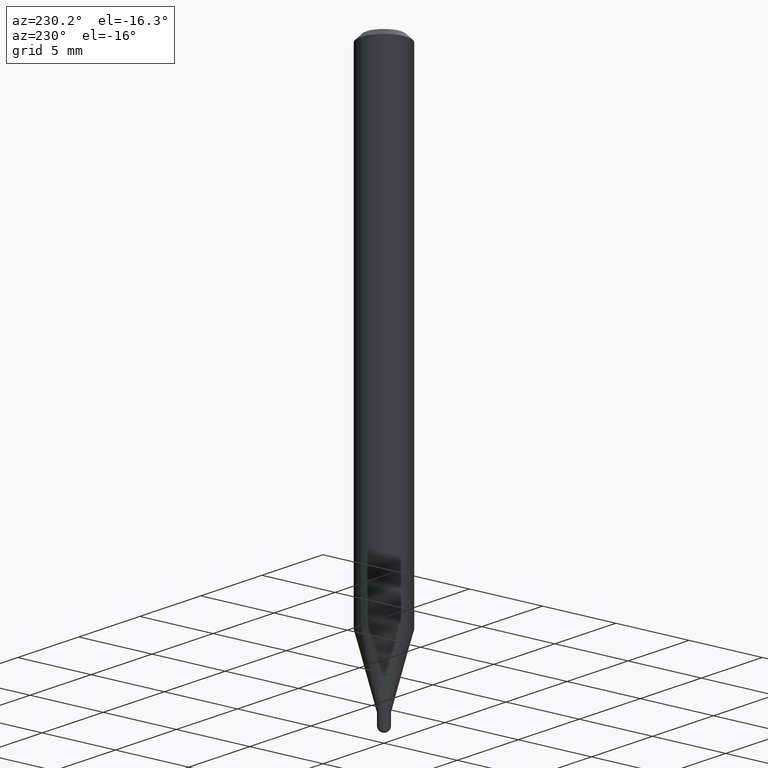
[diagram: clean part render]
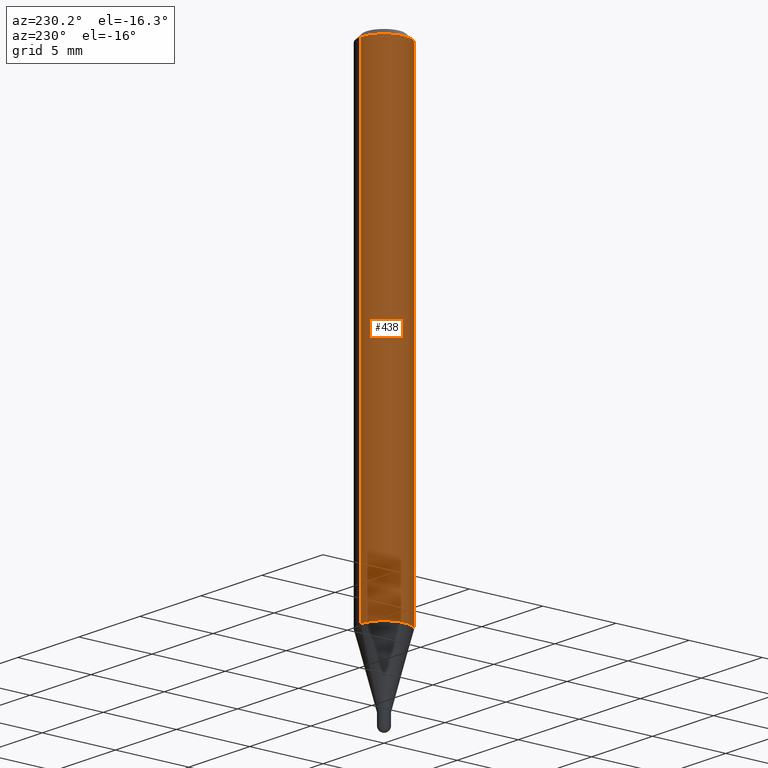
[diagram: same view with one face highlighted and labeled with its STEP entity id]
A machine part, auxiliary view. The second image highlights one B-rep face of the part: STEP entity #438.
In plain terms, the highlighted cylindrical surface (edge-blend (fillet) strip) has radius 1.5875 mm, axis along (-0, 0, 1).
Its self-contained STEP definition (entity closure, byte-faithful):
#27 = CIRCLE ( 'NONE', #54, 0.06250000000000000000 ) ;
#28 = ORIENTED_EDGE ( 'NONE', *, *, #369, .F. ) ;
#38 = VECTOR ( 'NONE', #425, 39.37007874015748143 ) ;
#54 = AXIS2_PLACEMENT_3D ( 'NONE', #334, #143, #331 ) ;
#59 = DIRECTION ( 'NONE',  ( -6.982962677686265922E-15, -1.000000000000000000, 3.491488369237233587E-15 ) ) ;
#64 = CARTESIAN_POINT ( 'NONE',  ( 4.440892098500937762E-16, 0.06249999999999554523, -1.277361561236700860 ) ) ;
#83 = EDGE_CURVE ( 'NONE', #173, #279, #257, .T. ) ;
#97 = DIRECTION ( 'NONE',  ( -2.445463896887184035E-29, 3.491488369237233587E-15, 1.000000000000000000 ) ) ;
#143 = DIRECTION ( 'NONE',  ( -2.445463896887184035E-29, 3.491488369237233587E-15, 1.000000000000000000 ) ) ;
#144 = FACE_OUTER_BOUND ( 'NONE', #184, .T. ) ;
#145 = ORIENTED_EDGE ( 'NONE', *, *, #83, .T. ) ;
#165 = VECTOR ( 'NONE', #286, 39.37007874015748143 ) ;
#170 = CARTESIAN_POINT ( 'NONE',  ( -4.364351673553605094E-16, -0.06250000000000446865, -1.277361561236700194 ) ) ;
#173 = VERTEX_POINT ( 'NONE', #170 ) ;
#176 = AXIS2_PLACEMENT_3D ( 'NONE', #385, #97, #59 ) ;
#184 = EDGE_LOOP ( 'NONE', ( #512, #367, #145, #28 ) ) ;
#232 = CYLINDRICAL_SURFACE ( 'NONE', #176, 0.06250000000000000000 ) ;
#257 = LINE ( 'NONE', #377, #165 ) ;
#266 = CARTESIAN_POINT ( 'NONE',  ( 4.440892098500625669E-16, 0.06250000000000000000, -2.182180230773270992E-16 ) ) ;
#272 = VERTEX_POINT ( 'NONE', #391 ) ;
#273 = AXIS2_PLACEMENT_3D ( 'NONE', #504, #489, #422 ) ;
#279 = VERTEX_POINT ( 'NONE', #490 ) ;
#286 = DIRECTION ( 'NONE',  ( -2.445463896887184035E-29, 3.491488369237233587E-15, 1.000000000000000000 ) ) ;
#291 = EDGE_CURVE ( 'NONE', #412, #272, #461, .T. ) ;
#331 = DIRECTION ( 'NONE',  ( -6.982962677686265922E-15, -1.000000000000000000, 3.483106191921935554E-15 ) ) ;
#334 = CARTESIAN_POINT ( 'NONE',  ( 3.668195845330792640E-31, -5.237232553855873110E-17, -0.01500000000000006710 ) ) ;
#367 = ORIENTED_EDGE ( 'NONE', *, *, #387, .T. ) ;
#369 = EDGE_CURVE ( 'NONE', #272, #279, #27, .T. ) ;
#377 = CARTESIAN_POINT ( 'NONE',  ( -4.364351673553916201E-16, -0.06250000000000000000, 2.182180230773270992E-16 ) ) ;
#385 = CARTESIAN_POINT ( 'NONE',  ( 0.000000000000000000, 0.000000000000000000, 0.000000000000000000 ) ) ;
#387 = EDGE_CURVE ( 'NONE', #412, #173, #440, .T. ) ;
#391 = CARTESIAN_POINT ( 'NONE',  ( 4.440892098500940720E-16, 0.06249999999999995143, -0.01500000000000028394 ) ) ;
#412 = VERTEX_POINT ( 'NONE', #64 ) ;
#422 = DIRECTION ( 'NONE',  ( -6.982962677686265922E-15, -1.000000000000000000, 4.370956789862821150E-15 ) ) ;
#425 = DIRECTION ( 'NONE',  ( -2.445463896887184035E-29, 3.491488369237233587E-15, 1.000000000000000000 ) ) ;
#438 = ADVANCED_FACE ( 'NONE', ( #144 ), #232, .T. ) ;
#440 = CIRCLE ( 'NONE', #273, 0.06250000000000000000 ) ;
#461 = LINE ( 'NONE', #266, #38 ) ;
#489 = DIRECTION ( 'NONE',  ( -2.445463896887184035E-29, 3.491488369237233587E-15, 1.000000000000000000 ) ) ;
#490 = CARTESIAN_POINT ( 'NONE',  ( -4.364351673553912750E-16, -0.06250000000000005551, -0.01499999999999984852 ) ) ;
#504 = CARTESIAN_POINT ( 'NONE',  ( 3.123741581275799299E-29, -4.459893034368653541E-15, -1.277361561236700638 ) ) ;
#512 = ORIENTED_EDGE ( 'NONE', *, *, #291, .F. ) ;